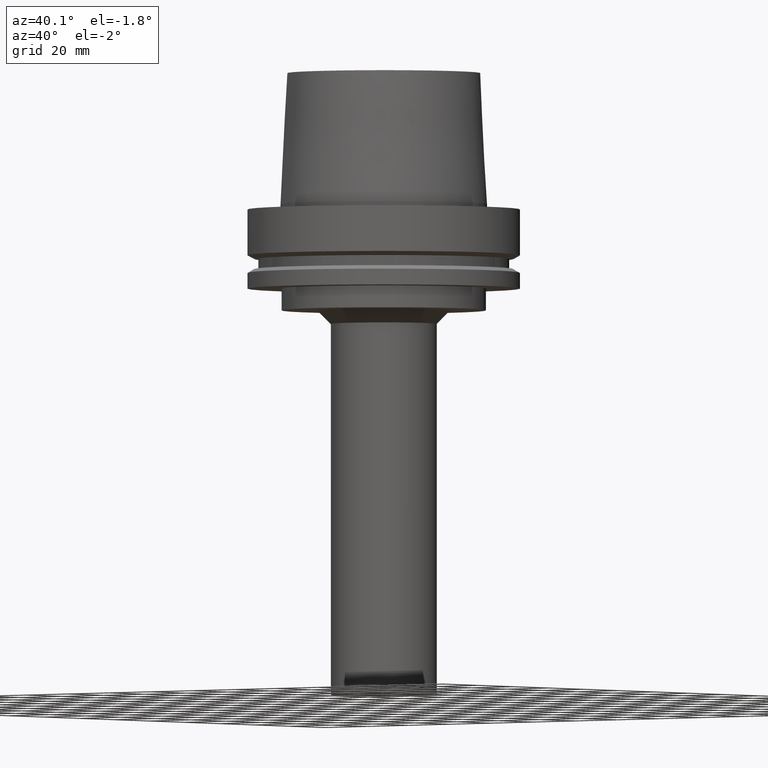
[diagram: clean part render]
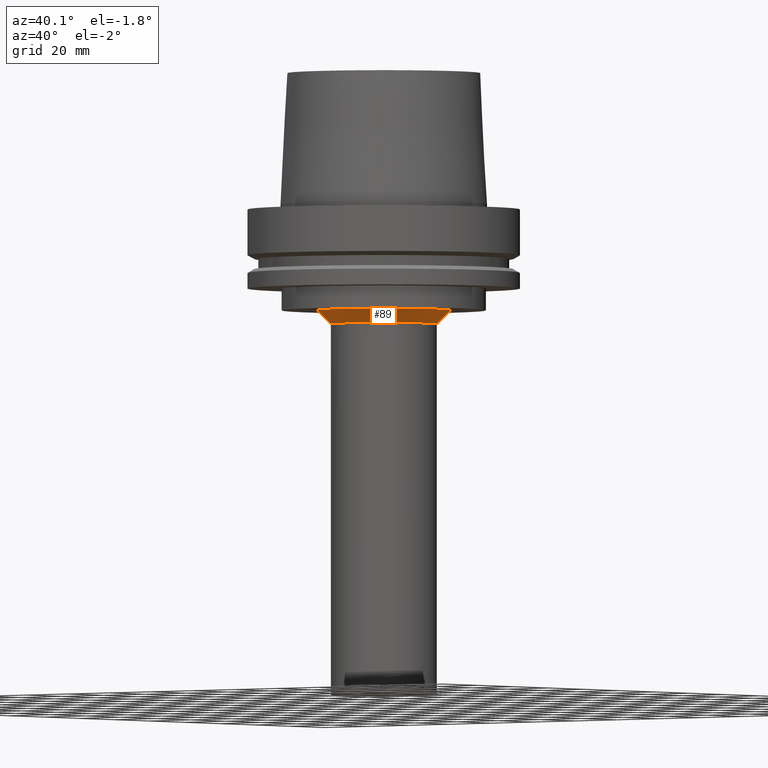
[diagram: same view with one face highlighted and labeled with its STEP entity id]
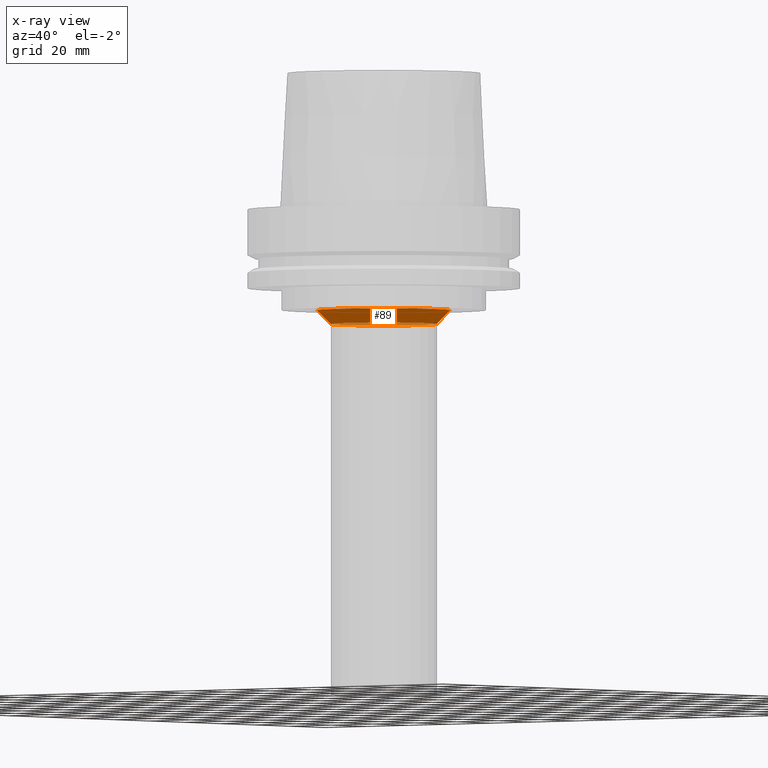
[diagram: x-ray of the same camera — body ghosted, the highlighted face saturated]
A machine part, auxiliary view. The second image highlights one B-rep face of the part: STEP entity #89.
The next image is the same camera in x-ray: the body ghosted, the highlighted face saturated — about 12% of this face is hidden behind the body in this view.
In plain terms, the highlighted conical surface has half-angle 45 deg.
Its self-contained STEP definition (entity closure, byte-faithful):
#89=ADVANCED_FACE('',(#134,#135),#136,.T.);
#134=FACE_BOUND('',#183,.T.);
#135=FACE_BOUND('',#184,.T.);
#136=CONICAL_SURFACE('',#185,22.0,0.785398163397456);
#183=EDGE_LOOP('',(#260));
#184=EDGE_LOOP('',(#261));
#185=AXIS2_PLACEMENT_3D('',#262,#263,#264);
#260=ORIENTED_EDGE('',*,*,#288,.F.);
#261=ORIENTED_EDGE('',*,*,#287,.T.);
#262=CARTESIAN_POINT('',(2.41867742831603E-015,4.83735485663205E-015,-39.5000000000001));
#263=DIRECTION('',(-6.12323399573677E-017,-1.22464679914735E-016,1.0));
#264=DIRECTION('',(-1.23259516440783E-032,1.0,1.22464679914735E-016));
#287=EDGE_CURVE('',#316,#316,#317,.T.);
#288=EDGE_CURVE('',#318,#318,#319,.T.);
#316=VERTEX_POINT('',#348);
#317=CIRCLE('',#349,24.5);
#318=VERTEX_POINT('',#350);
#319=CIRCLE('',#351,19.5);
#348=CARTESIAN_POINT('',(2.26559657842261E-015,24.5,-37.0000000000001));
#349=AXIS2_PLACEMENT_3D('',#393,#394,#395);
#350=CARTESIAN_POINT('',(2.57175827820944E-015,19.5,-42.0));
#351=AXIS2_PLACEMENT_3D('',#396,#397,#398);
#393=CARTESIAN_POINT('',(2.26559657842261E-015,4.53119315684522E-015,-37.0000000000001));
#394=DIRECTION('',(6.12323399573677E-017,1.22464679914735E-016,-1.0));
#395=DIRECTION('',(-1.23259516440783E-032,1.0,1.22464679914735E-016));
#396=CARTESIAN_POINT('',(2.57175827820944E-015,5.14351655641888E-015,-42.0));
#397=DIRECTION('',(6.12323399573677E-017,1.22464679914735E-016,-1.0));
#398=DIRECTION('',(-1.23259516440783E-032,1.0,1.22464679914735E-016));